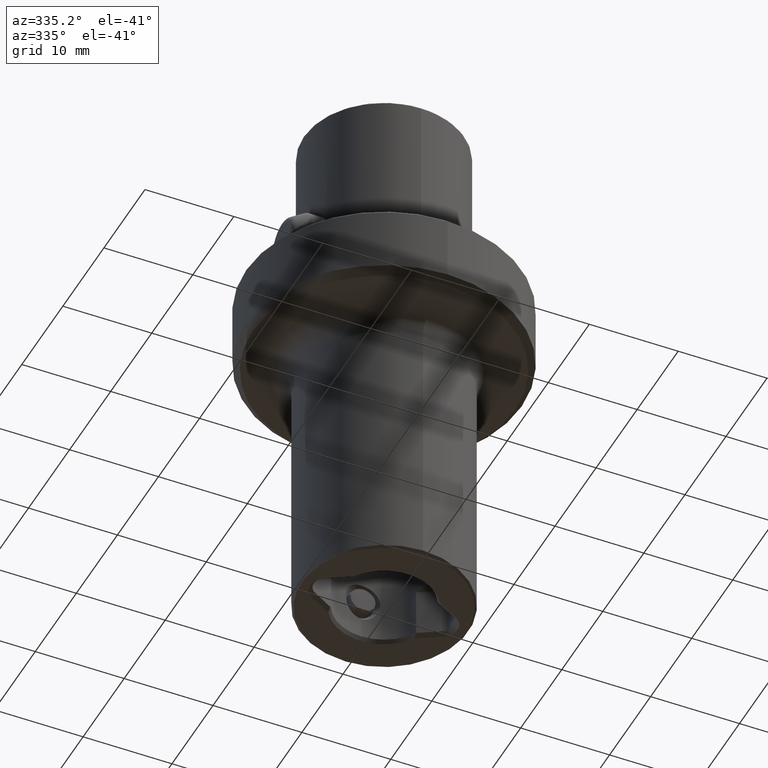
[diagram: clean part render]
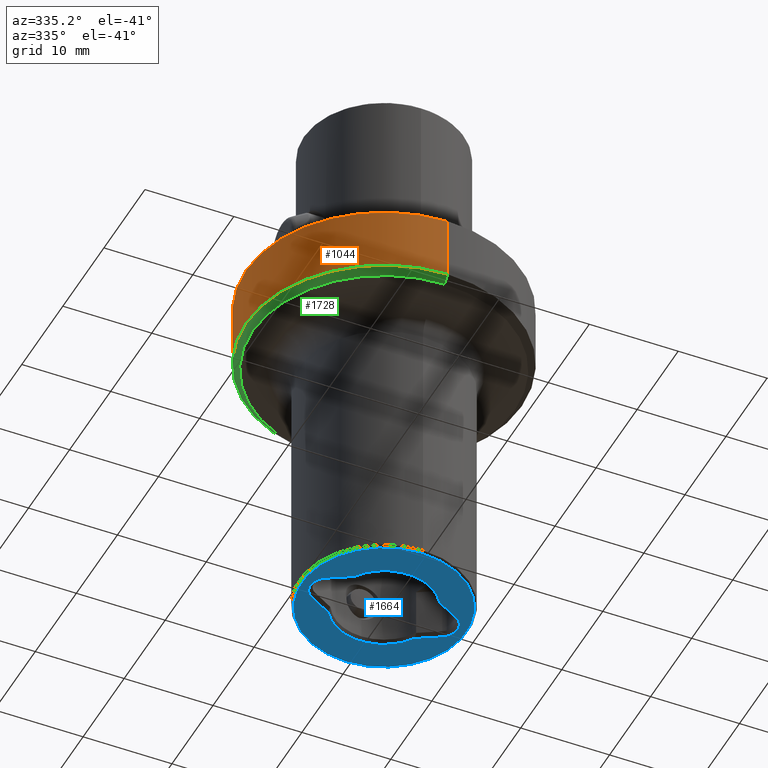
[diagram: same view with three faces highlighted in distinct colors, each labeled with its STEP entity id]
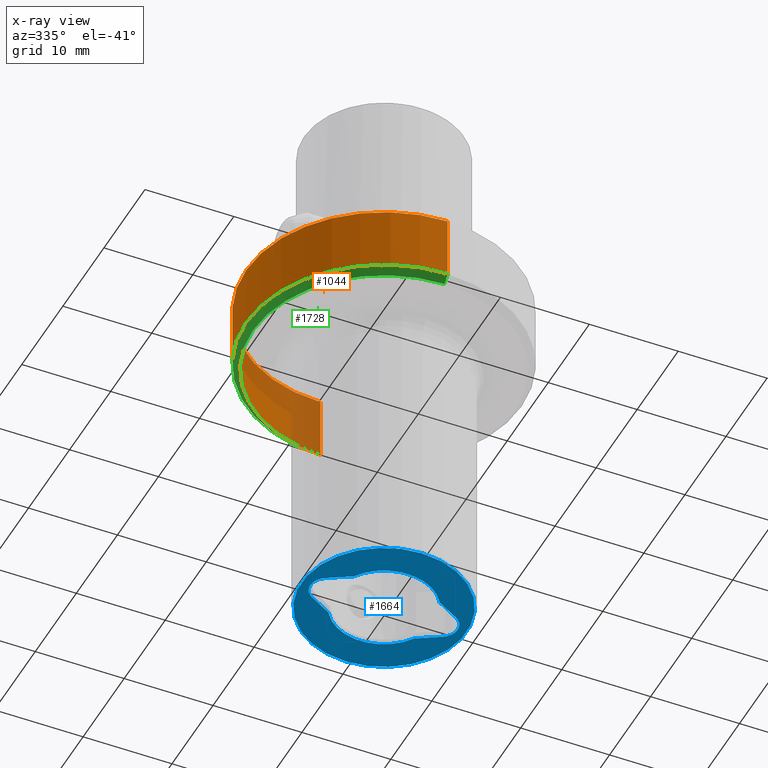
[diagram: x-ray of the same camera — body ghosted, the three highlighted faces saturated]
A machine part, auxiliary view with three faces highlighted in distinct colors.
The next image is the same camera in x-ray (body ghosted, the three faces saturated) — at least one of them is partly hidden behind the body in this view.
Their STEP definitions:

[orange] entity #1044 — the highlighted cylindrical surface (partial cylindrical patch) has radius 15.5 mm, axis along (-0, -0, 1).
#784=EDGE_CURVE('NONE',#916,#1764,#2103,.T.);
#916=VERTEX_POINT('NONE',#2251);
#1028=EDGE_CURVE('NONE',#1684,#1782,#2376,.F.);
#1044=ADVANCED_FACE('NONE',(#2394),#2395,.T.);
#1290=VERTEX_POINT('NONE',#2669);
#1442=EDGE_CURVE('NONE',#1290,#1684,#2835,.T.);
#1684=VERTEX_POINT('NONE',#3113);
#1732=EDGE_CURVE('NONE',#1290,#916,#3164,.F.);
#1764=VERTEX_POINT('NONE',#3202);
#1782=VERTEX_POINT('NONE',#3221);
#1822=EDGE_CURVE('NONE',#1782,#1764,#3264,.F.);
#2103=LINE('',#3726,#3727);
#2251=CARTESIAN_POINT('',(-1.89813984842468E-015,-15.5,-7.62499999999998));
#2376=CIRCLE('',#4169,15.5);
#2394=FACE_OUTER_BOUND('',#4198,.T.);
#2395=CYLINDRICAL_SURFACE('',#4199,15.5);
#2669=CARTESIAN_POINT('',(0.0,15.5,-7.62499999999998));
#2835=LINE('',#5153,#5154);
#3113=CARTESIAN_POINT('',(0.0,15.5,-0.47499999999998));
#3164=CIRCLE('',#5716,15.5);
#3202=CARTESIAN_POINT('',(-1.89813984842468E-015,-15.5,-0.47499999999998));
#3221=CARTESIAN_POINT('',(-15.5,3.69095352155055E-014,-0.47499999999998));
#3264=CIRCLE('',#6000,15.5);
#3726=CARTESIAN_POINT('',(-1.89813984842468E-015,-15.5,3.10781878606757));
#3727=VECTOR('',#6431,1000.0);
#4169=AXIS2_PLACEMENT_3D('',#6768,#6769,#6770);
#4198=EDGE_LOOP('',(#6799,#6800,#6801,#6802,#6803));
#4199=AXIS2_PLACEMENT_3D('',#6804,#6805,#6806);
#5153=CARTESIAN_POINT('',(0.0,15.5,3.10781878606757));
#5154=VECTOR('',#7319,1000.0);
#5716=AXIS2_PLACEMENT_3D('',#7757,#7758,#7759);
#6000=AXIS2_PLACEMENT_3D('',#7892,#7893,#7894);
#6431=DIRECTION('',(0.0,-0.0,1.0));
#6768=CARTESIAN_POINT('',(0.0,0.0,-0.474999999999977));
#6769=DIRECTION('',(0.0,0.0,-1.0));
#6770=DIRECTION('',(0.0,1.0,0.0));
#6799=ORIENTED_EDGE('',*,*,#1732,.T.);
#6800=ORIENTED_EDGE('',*,*,#784,.T.);
#6801=ORIENTED_EDGE('',*,*,#1822,.F.);
#6802=ORIENTED_EDGE('',*,*,#1028,.F.);
#6803=ORIENTED_EDGE('',*,*,#1442,.F.);
#6804=CARTESIAN_POINT('',(0.0,0.0,3.10781878606757));
#6805=DIRECTION('',(-0.0,-0.0,1.0));
#6806=DIRECTION('',(0.0,1.0,0.0));
#7319=DIRECTION('',(0.0,-0.0,1.0));
#7757=CARTESIAN_POINT('',(0.0,0.0,-7.62499999999998));
#7758=DIRECTION('',(0.0,0.0,-1.0));
#7759=DIRECTION('',(0.0,1.0,0.0));
#7892=CARTESIAN_POINT('',(0.0,0.0,-0.474999999999977));
#7893=DIRECTION('',(0.0,0.0,-1.0));
#7894=DIRECTION('',(0.0,1.0,0.0));

[blue] entity #1664 — the highlighted planar face has unit normal (0, 0, 1).
#728=EDGE_CURVE('NONE',#1042,#766,#2041,.F.);
#766=VERTEX_POINT('NONE',#2084);
#798=EDGE_CURVE('NONE',#966,#1478,#2118,.F.);
#822=EDGE_CURVE('NONE',#1572,#1042,#2144,.F.);
#892=EDGE_CURVE('NONE',#1910,#1068,#2225,.F.);
#898=EDGE_CURVE('NONE',#1390,#1590,#2232,.T.);
#966=VERTEX_POINT('NONE',#2307);
#1042=VERTEX_POINT('NONE',#2392);
#1058=EDGE_CURVE('NONE',#1068,#1710,#2410,.F.);
#1068=VERTEX_POINT('NONE',#2421);
#1328=EDGE_CURVE('NONE',#1710,#966,#2709,.F.);
#1390=VERTEX_POINT('NONE',#2778);
#1478=VERTEX_POINT('NONE',#2877);
#1554=EDGE_CURVE('NONE',#766,#1910,#2964,.F.);
#1572=VERTEX_POINT('NONE',#2983);
#1590=VERTEX_POINT('NONE',#3004);
#1620=EDGE_CURVE('NONE',#1478,#1572,#3039,.F.);
#1664=ADVANCED_FACE('NONE',(#3088,#3089),#3090,.F.);
#1710=VERTEX_POINT('NONE',#3141);
#1768=EDGE_CURVE('NONE',#1590,#1390,#3206,.F.);
#1910=VERTEX_POINT('NONE',#3361);
#2041=LINE('',#3510,#3511);
#2084=CARTESIAN_POINT('',(-4.84117314929678,3.0881466221022,-40.5));
#2118=CIRCLE('',#3747,5.74226497308104);
#2144=CIRCLE('',#3830,1.9);
#2225=LINE('',#3930,#3931);
#2232=CIRCLE('',#3941,9.275);
#2307=CARTESIAN_POINT('',(4.84117314929679,-3.0881466221022,-40.5));
#2392=CARTESIAN_POINT('',(-7.34000000000012,1.64544826719048,-40.5));
#2410=CIRCLE('',#4220,1.9);
#2421=CARTESIAN_POINT('',(7.34000000000012,1.64544826719048,-40.5));
#2709=LINE('',#4988,#4989);
#2778=CARTESIAN_POINT('',(-1.14959921465076E-015,-9.275,-40.5));
#2877=CARTESIAN_POINT('',(-4.84117314929678,-3.0881466221022,-40.5));
#2964=CIRCLE('',#5413,5.74226497308104);
#2983=CARTESIAN_POINT('',(-7.34000000000013,-1.64544826719045,-40.5));
#3004=CARTESIAN_POINT('',(1.92592994438724E-031,9.275,-40.5));
#3039=LINE('',#5548,#5549);
#3088=FACE_OUTER_BOUND('',#5616,.T.);
#3089=FACE_BOUND('',#5617,.T.);
#3090=PLANE('',#5618);
#3141=CARTESIAN_POINT('',(7.34000000000013,-1.64544826719046,-40.5));
#3206=CIRCLE('',#5865,9.275);
#3361=CARTESIAN_POINT('',(4.84117314929679,3.0881466221022,-40.5));
#3510=CARTESIAN_POINT('',(-9.06875000000016,0.647353989328977,-40.5));
#3511=VECTOR('',#6376,1.0);
#3747=AXIS2_PLACEMENT_3D('',#6447,#6448,#6449);
#3830=AXIS2_PLACEMENT_3D('',#6478,#6479,#6480);
#3930=CARTESIAN_POINT('',(-1.57836431703035,6.79446830635874,-40.5));
#3931=VECTOR('',#6590,1.0);
#3941=AXIS2_PLACEMENT_3D('',#6600,#6601,#6602);
#4220=AXIS2_PLACEMENT_3D('',#6820,#6821,#6822);
#4988=CARTESIAN_POINT('',(0.818749999999862,-5.4104937101432,-40.5));
#4989=VECTOR('',#7177,1.0);
#5413=AXIS2_PLACEMENT_3D('',#7497,#7498,#7499);
#5548=CARTESIAN_POINT('',(-6.67163568297,-2.03132858554451,-40.5));
#5549=VECTOR('',#7598,1.0);
#5616=EDGE_LOOP('',(#7657,#7658));
#5617=EDGE_LOOP('',(#7659,#7660,#7661,#7662,#7663,#7664,#7665,#7666));
#5618=AXIS2_PLACEMENT_3D('',#7667,#7668,#7669);
#5865=AXIS2_PLACEMENT_3D('',#7823,#7824,#7825);
#6376=DIRECTION('',(-0.866025403784456,-0.49999999999997,1.06054021204603E-016));
#6447=CARTESIAN_POINT('',(4.48224054439803E-016,0.0,-40.5));
#6448=DIRECTION('',(1.22460635382238E-016,0.0,1.0));
#6449=DIRECTION('',(-1.0,0.0,1.22460635382238E-016));
#6478=CARTESIAN_POINT('',(-6.39000000000018,1.12757025938492E-014,-40.5));
#6479=DIRECTION('',(1.22460635382238E-016,0.0,1.0));
#6480=DIRECTION('',(0.0,-1.0,0.0));
#6590=DIRECTION('',(-0.866025403784457,0.499999999999968,1.06054021204604E-016));
#6600=CARTESIAN_POINT('',(0.0,0.0,-40.5));
#6601=DIRECTION('',(1.22460635382238E-016,-0.0,1.0));
#6602=DIRECTION('',(0.0,1.0,0.0));
#6820=CARTESIAN_POINT('',(6.39000000000018,1.21430643318377E-014,-40.5));
#6821=DIRECTION('',(1.22460635382238E-016,0.0,1.0));
#6822=DIRECTION('',(0.0,-1.0,0.0));
#7177=DIRECTION('',(0.866025403784454,0.499999999999974,-1.06054021204603E-016));
#7497=CARTESIAN_POINT('',(4.48224054439803E-016,0.0,-40.5));
#7498=DIRECTION('',(1.22460635382238E-016,0.0,1.0));
#7499=DIRECTION('',(-1.0,0.0,1.22460635382238E-016));
#7598=DIRECTION('',(0.866025403784453,-0.499999999999974,-1.06054021204603E-016));
#7657=ORIENTED_EDGE('',*,*,#1768,.F.);
#7658=ORIENTED_EDGE('',*,*,#898,.F.);
#7659=ORIENTED_EDGE('',*,*,#892,.F.);
#7660=ORIENTED_EDGE('',*,*,#1554,.F.);
#7661=ORIENTED_EDGE('',*,*,#728,.F.);
#7662=ORIENTED_EDGE('',*,*,#822,.F.);
#7663=ORIENTED_EDGE('',*,*,#1620,.F.);
#7664=ORIENTED_EDGE('',*,*,#798,.F.);
#7665=ORIENTED_EDGE('',*,*,#1328,.F.);
#7666=ORIENTED_EDGE('',*,*,#1058,.F.);
#7667=CARTESIAN_POINT('',(-11.0,0.0,-40.5));
#7668=DIRECTION('',(1.22460635382238E-016,0.0,1.0));
#7669=DIRECTION('',(-1.0,0.0,1.22460635382238E-016));
#7823=CARTESIAN_POINT('',(0.0,0.0,-40.5));
#7824=DIRECTION('',(-1.22460635382238E-016,0.0,-1.0));
#7825=DIRECTION('',(0.0,1.0,0.0));

[green] entity #1728 — the highlighted conical surface has half-angle 45 deg.
#886=EDGE_CURVE('NONE',#982,#916,#2219,.T.);
#916=VERTEX_POINT('NONE',#2251);
#982=VERTEX_POINT('NONE',#2325);
#1102=EDGE_CURVE('NONE',#1596,#982,#2455,.F.);
#1170=EDGE_CURVE('NONE',#1596,#1290,#2531,.T.);
#1290=VERTEX_POINT('NONE',#2669);
#1596=VERTEX_POINT('NONE',#3011);
#1728=ADVANCED_FACE('NONE',(#3159),#3160,.T.);
#1732=EDGE_CURVE('NONE',#1290,#916,#3164,.F.);
#2219=LINE('',#3921,#3922);
#2251=CARTESIAN_POINT('',(-1.89813984842468E-015,-15.5,-7.62499999999998));
#2325=CARTESIAN_POINT('',(-1.85221711015634E-015,-14.75,-8.37499999999998));
#2455=CIRCLE('',#4344,14.75);
#2531=LINE('',#4444,#4445);
#2669=CARTESIAN_POINT('',(0.0,15.5,-7.62499999999998));
#3011=CARTESIAN_POINT('',(0.0,14.75,-8.37499999999998));
#3159=FACE_OUTER_BOUND('',#5709,.T.);
#3160=CONICAL_SURFACE('',#5710,14.75,0.785398163397449);
#3164=CIRCLE('',#5716,15.5);
#3921=CARTESIAN_POINT('',(-1.80629437188801E-015,-14.75,-8.37499999999998));
#3922=VECTOR('',#6586,1000.0);
#4344=AXIS2_PLACEMENT_3D('',#6856,#6857,#6858);
#4444=CARTESIAN_POINT('',(0.0,14.75,-8.37499999999998));
#4445=VECTOR('',#6965,1000.0);
#5709=EDGE_LOOP('',(#7747,#7748,#7749,#7750));
#5710=AXIS2_PLACEMENT_3D('',#7751,#7752,#7753);
#5716=AXIS2_PLACEMENT_3D('',#7757,#7758,#7759);
#6586=DIRECTION('',(-8.65927457071936E-017,-0.707106781186548,0.707106781186547));
#6856=CARTESIAN_POINT('',(0.0,0.0,-8.37499999999998));
#6857=DIRECTION('',(0.0,0.0,-1.0));
#6858=DIRECTION('',(0.0,1.0,0.0));
#6965=DIRECTION('',(0.0,0.707106781186548,0.707106781186547));
#7747=ORIENTED_EDGE('',*,*,#1102,.T.);
#7748=ORIENTED_EDGE('',*,*,#886,.T.);
#7749=ORIENTED_EDGE('',*,*,#1732,.F.);
#7750=ORIENTED_EDGE('',*,*,#1170,.F.);
#7751=CARTESIAN_POINT('',(0.0,0.0,-8.37499999999998));
#7752=DIRECTION('',(-0.0,-0.0,1.0));
#7753=DIRECTION('',(0.0,1.0,0.0));
#7757=CARTESIAN_POINT('',(0.0,0.0,-7.62499999999998));
#7758=DIRECTION('',(0.0,0.0,-1.0));
#7759=DIRECTION('',(0.0,1.0,0.0));